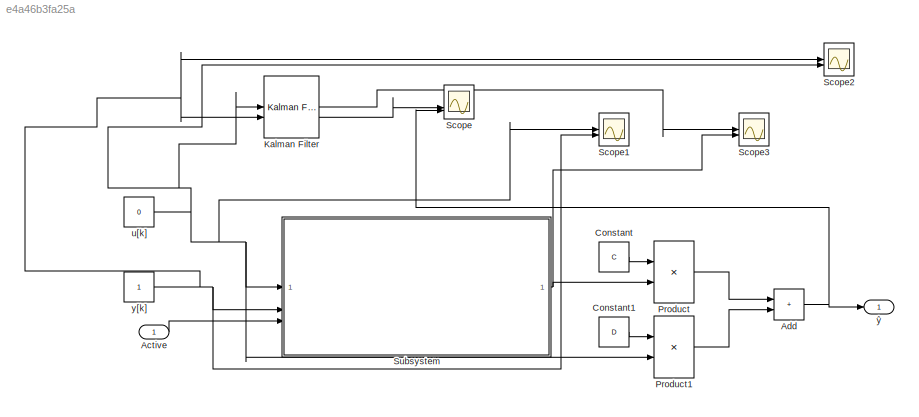
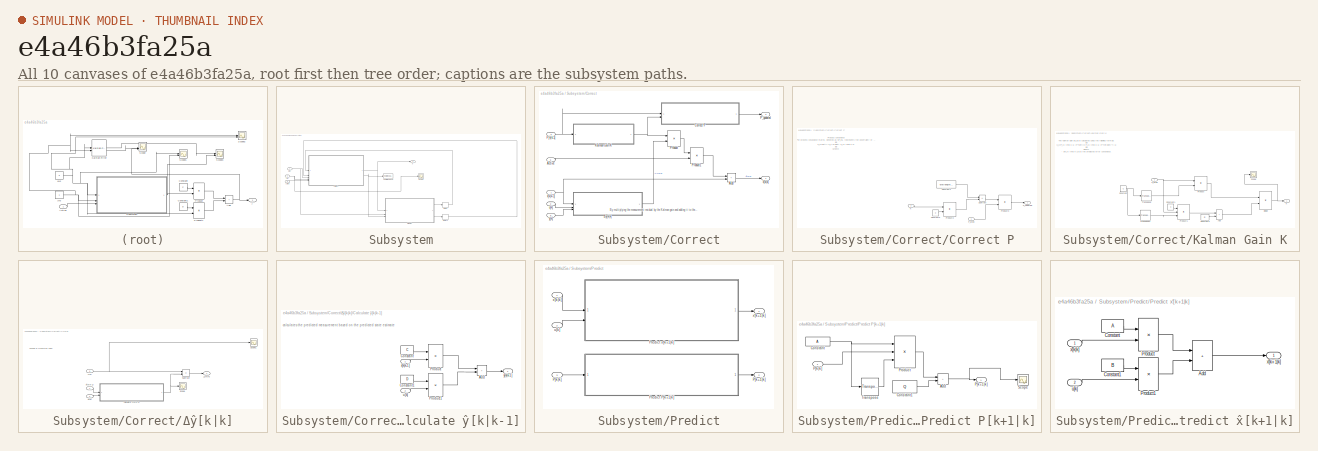
[diagram: thumbnail index - all 10 canvases of the model, root first then tree order]
MODEL slx_e4a46b3fa25a
KIND model
CONFIG AbsTol = auto
CONFIG EnableMultiTasking = off
CONFIG FixedStep = auto
CONFIG MaxStep = auto
CONFIG MinStep = auto
CONFIG RelTol = 1e-3
CONFIG SampleTimeConstraint = Unconstrained
CONFIG SolverName = VariableStepDiscrete
CONFIG StartTime = 0.0
CONFIG StopTime = 100.0
BLOCK [Inport] Active
BLOCK [Sum] Add
  IconShape = rectangular
BLOCK [Constant] Constant
  Value = C
  VectorParams1D = off
BLOCK [Constant] Constant1
  Value = D
  VectorParams1D = off
BLOCK [Reference] Kalman Filter  REF=ctrlSharedLib/Kalman Filter
  LibrarySourceBlock = cstblocks/State Estimation/Kalman Filter
  SourceBlock = ctrlSharedLib/Kalman Filter
  SourceType = ctrlKalmanFilter
BLOCK [Product] Product
  Multiplication = Matrix(*)
BLOCK [Product] Product1
  Multiplication = Matrix(*)
BLOCK [Scope] Scope
  Floating = off
  NumInputPorts = 3
  ScopeSpecificationString = Simulink.scopes.TimeScopeBlockCfg('CurrentConfiguration', extmgr.ConfigurationSet(extmgr.Configuration('Core','General UI',true),extmgr.Configuration('Core','Source UI',true),extmgr.Configuration('Sources','WiredSimulink',true,'DataLoggingVariableName','CalculatedKalman','DataLogging',true,'DataLoggingSaveFormat','StructureWithTime'),extmgr.Configuration('Visuals','Time Domain',true,'PlotType','St...<+1852ch>
BLOCK [Scope] Scope1
  Floating = off
  NumInputPorts = 2
  ScopeSpecificationString = Simulink.scopes.TimeScopeBlockCfg('CurrentConfiguration', extmgr.ConfigurationSet(extmgr.Configuration('Core','General UI',true),extmgr.Configuration('Core','Source UI',true),extmgr.Configuration('Sources','WiredSimulink',true,'DataLoggingVariableName','CalculatedKalman1','DataLogging',true,'DataLoggingSaveFormat','StructureWithTime'),extmgr.Configuration('Visuals','Time Domain',true,'PlotType','S...<+1841ch>
BLOCK [Scope] Scope2
  Floating = off
  NumInputPorts = 2
  ScopeSpecificationString = Simulink.scopes.TimeScopeBlockCfg('CurrentConfiguration', extmgr.ConfigurationSet(extmgr.Configuration('Core','General UI',true),extmgr.Configuration('Core','Source UI',true),extmgr.Configuration('Sources','WiredSimulink',true,'DataLoggingVariableName','CalculatedKalman2','DataLogging',true,'DataLoggingSaveFormat','StructureWithTime'),extmgr.Configuration('Visuals','Time Domain',true,'PlotType','S...<+1817ch>
BLOCK [Scope] Scope3
  Floating = off
  NumInputPorts = 2
  ScopeSpecificationString = Simulink.scopes.TimeScopeBlockCfg('CurrentConfiguration', extmgr.ConfigurationSet(extmgr.Configuration('Core','General UI',true),extmgr.Configuration('Core','Source UI',true),extmgr.Configuration('Sources','WiredSimulink',true,'DataLoggingVariableName','ScopeData1'),extmgr.Configuration('Visuals','Time Domain',true,'SerializedDisplays',{struct('MinYLimReal','-12.5','MaxYLimReal','12.5','YLabelReal...<+1737ch>
BLOCK [SubSystem] Subsystem
BLOCK [Inport] Subsystem/Active
  Port = 3
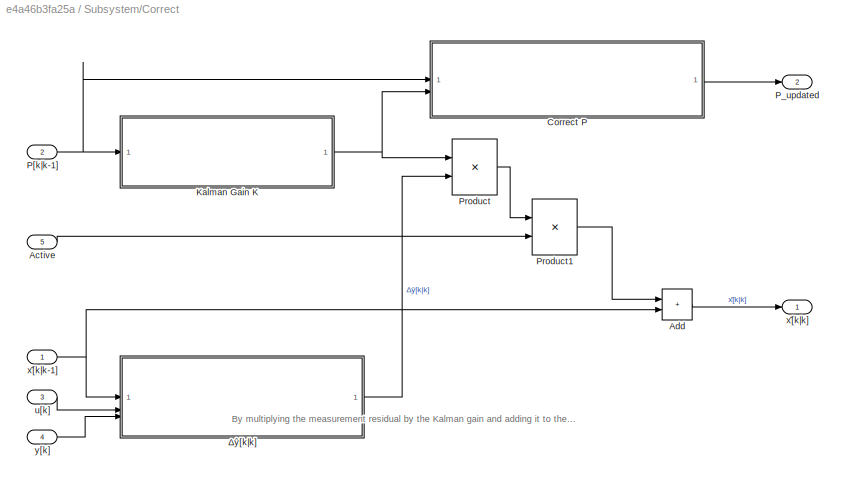
BLOCK [SubSystem] Subsystem/Correct
BLOCK [Inport] Subsystem/Correct/Active
  Port = 5
BLOCK [Sum] Subsystem/Correct/Add
  IconShape = rectangular
BLOCK [SubSystem] Subsystem/Correct/Correct P
BLOCK [Constant] Subsystem/Correct/Correct P/Constant4
  Value = eye(length(C))
  VectorParams1D = off
BLOCK [Constant] Subsystem/Correct/Correct P/Constant5
  Value = C
  VectorParams1D = off
BLOCK [Inport] Subsystem/Correct/Correct P/K
  Port = 2
BLOCK [Inport] Subsystem/Correct/Correct P/P_pred
BLOCK [Outport] Subsystem/Correct/Correct P/P_updated
  VectorParamsAs1DForOutWhenUnconnected = off
BLOCK [Product] Subsystem/Correct/Correct P/Product2
  Multiplication = Matrix(*)
BLOCK [Product] Subsystem/Correct/Correct P/Product3
  Multiplication = Matrix(*)
BLOCK [Sum] Subsystem/Correct/Correct P/Subtract
  IconShape = rectangular
  Inputs = +-
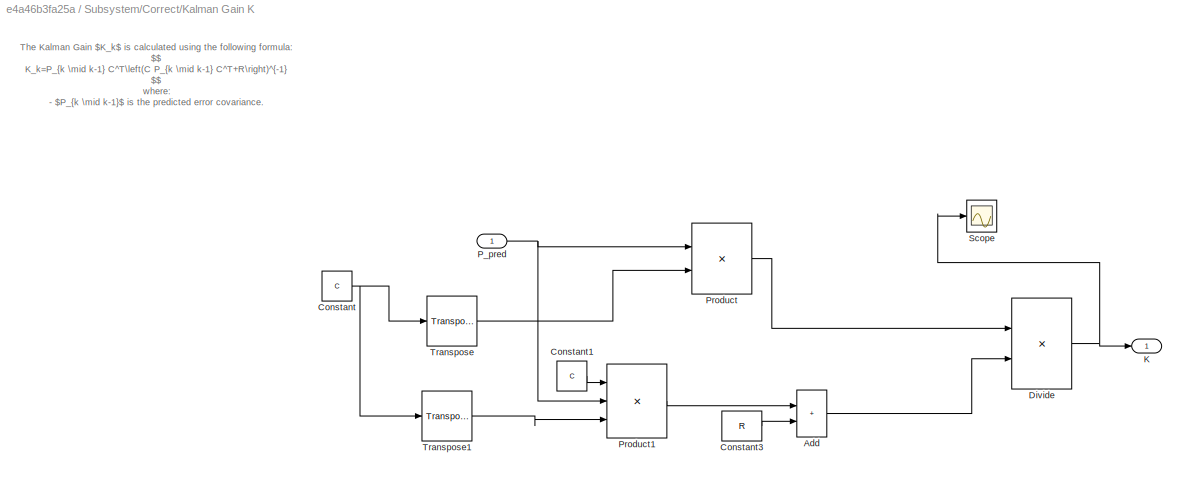
BLOCK [SubSystem] Subsystem/Correct/Kalman Gain K
BLOCK [Sum] Subsystem/Correct/Kalman Gain K/Add
  IconShape = rectangular
BLOCK [Constant] Subsystem/Correct/Kalman Gain K/Constant
  Value = C
  VectorParams1D = off
BLOCK [Constant] Subsystem/Correct/Kalman Gain K/Constant1
  Value = C
  VectorParams1D = off
BLOCK [Constant] Subsystem/Correct/Kalman Gain K/Constant3
  Value = R
  VectorParams1D = off
BLOCK [Product] Subsystem/Correct/Kalman Gain K/Divide
  Inputs = */
  Multiplication = Matrix(*)
BLOCK [Outport] Subsystem/Correct/Kalman Gain K/K
  VectorParamsAs1DForOutWhenUnconnected = off
BLOCK [Inport] Subsystem/Correct/Kalman Gain K/P_pred
BLOCK [Product] Subsystem/Correct/Kalman Gain K/Product
  Multiplication = Matrix(*)
BLOCK [Product] Subsystem/Correct/Kalman Gain K/Product1
  Inputs = 3
  Multiplication = Matrix(*)
BLOCK [Scope] Subsystem/Correct/Kalman Gain K/Scope
  Floating = off
  NumInputPorts = 1
  ScopeSpecificationString = Simulink.scopes.TimeScopeBlockCfg('CurrentConfiguration', extmgr.ConfigurationSet(extmgr.Configuration('Core','General UI',true),extmgr.Configuration('Core','Source UI',true),extmgr.Configuration('Sources','WiredSimulink',true,'DataLoggingVariableName','ScopeData3'),extmgr.Configuration('Visuals','Time Domain',true,'SerializedDisplays',{struct('MinYLimReal','-0.40555','MaxYLimReal','0.04506','YLab...<+1544ch>
BLOCK [Reference] Subsystem/Correct/Kalman Gain K/Transpose  REF=matrix_library/Transpose
  LibrarySourceBlock = simulink/Matrix\nOperations/Transpose
  SourceBlock = matrix_library/Transpose
  SourceType = Transpose
BLOCK [Reference] Subsystem/Correct/Kalman Gain K/Transpose1  REF=matrix_library/Transpose
  LibrarySourceBlock = simulink/Matrix\nOperations/Transpose
  SourceBlock = matrix_library/Transpose
  SourceType = Transpose
BLOCK [Inport] Subsystem/Correct/P[k|k-1]
  Port = 2
BLOCK [Outport] Subsystem/Correct/P_updated
  Port = 2
  VectorParamsAs1DForOutWhenUnconnected = off
BLOCK [Product] Subsystem/Correct/Product
  Multiplication = Matrix(*)
BLOCK [Product] Subsystem/Correct/Product1
  Multiplication = Matrix(*)
BLOCK [Inport] Subsystem/Correct/u[k]
  Port = 3
BLOCK [Inport] Subsystem/Correct/x̂[k|k-1]
BLOCK [Outport] Subsystem/Correct/x̂[k|k]
  VectorParamsAs1DForOutWhenUnconnected = off
BLOCK [Inport] Subsystem/Correct/y[k]
  Port = 4
BLOCK [SubSystem] Subsystem/Correct/Δŷ[k|k]
BLOCK [SubSystem] Subsystem/Correct/Δŷ[k|k]/Calculate ŷ[k|k-1]
BLOCK [Sum] Subsystem/Correct/Δŷ[k|k]/Calculate ŷ[k|k-1]/Add
  IconShape = rectangular
BLOCK [Constant] Subsystem/Correct/Δŷ[k|k]/Calculate ŷ[k|k-1]/Constant
  Value = C
  VectorParams1D = off
BLOCK [Constant] Subsystem/Correct/Δŷ[k|k]/Calculate ŷ[k|k-1]/Constant1
  Value = D
  VectorParams1D = off
BLOCK [Product] Subsystem/Correct/Δŷ[k|k]/Calculate ŷ[k|k-1]/Product
  Multiplication = Matrix(*)
BLOCK [Product] Subsystem/Correct/Δŷ[k|k]/Calculate ŷ[k|k-1]/Product1
  Multiplication = Matrix(*)
BLOCK [Inport] Subsystem/Correct/Δŷ[k|k]/Calculate ŷ[k|k-1]/u[k]
  Port = 2
BLOCK [Inport] Subsystem/Correct/Δŷ[k|k]/Calculate ŷ[k|k-1]/x̂[k|k-1]
BLOCK [Outport] Subsystem/Correct/Δŷ[k|k]/Calculate ŷ[k|k-1]/ŷ[k|k-1]
  VectorParamsAs1DForOutWhenUnconnected = off
BLOCK [Scope] Subsystem/Correct/Δŷ[k|k]/Scope
  Floating = off
  NumInputPorts = 1
  ScopeSpecificationString = Simulink.scopes.TimeScopeBlockCfg('CurrentConfiguration', extmgr.ConfigurationSet(extmgr.Configuration('Core','General UI',true),extmgr.Configuration('Core','Source UI',true),extmgr.Configuration('Sources','WiredSimulink',true,'DataLoggingVariableName','ScopeData2'),extmgr.Configuration('Visuals','Time Domain',true,'SerializedDisplays',{struct('MinYLimReal','-244.28559','MaxYLimReal','99.36507','Y...<+1418ch>
BLOCK [Scope] Subsystem/Correct/Δŷ[k|k]/Scope1
  Floating = off
  NumInputPorts = 1
  ScopeSpecificationString = Simulink.scopes.TimeScopeBlockCfg('CurrentConfiguration', extmgr.ConfigurationSet(extmgr.Configuration('Core','General UI',true),extmgr.Configuration('Core','Source UI',true),extmgr.Configuration('Sources','WiredSimulink',true,'DataLoggingVariableName','ScopeData3'),extmgr.Configuration('Visuals','Time Domain',true,'SerializedDisplays',{struct('MinYLimReal','0.9','MaxYLimReal','1.1','YLabelReal','...<+1453ch>
BLOCK [Sum] Subsystem/Correct/Δŷ[k|k]/Subtract
  IconShape = rectangular
  Inputs = +-
BLOCK [Inport] Subsystem/Correct/Δŷ[k|k]/u[k]
  Port = 2
BLOCK [Inport] Subsystem/Correct/Δŷ[k|k]/x̂[k|k-1]
BLOCK [Inport] Subsystem/Correct/Δŷ[k|k]/y[k]
  Port = 3
BLOCK [Outport] Subsystem/Correct/Δŷ[k|k]/Δŷ[k|k]
  VectorParamsAs1DForOutWhenUnconnected = off
BLOCK [Delay] Subsystem/Delay
  DelayLength = 1
  InitialCondition = X0
  InputPortMap = u0
BLOCK [Delay] Subsystem/Delay1
  DelayLength = 1
  InitialCondition = P0
  InputPortMap = u0
BLOCK [SubSystem] Subsystem/Predict
BLOCK [Outport] Subsystem/Predict/P[k+1|k]
  Port = 2
  VectorParamsAs1DForOutWhenUnconnected = off
BLOCK [Inport] Subsystem/Predict/P[k|k]
  Port = 3
BLOCK [SubSystem] Subsystem/Predict/Predict P[k+1|k]
BLOCK [Sum] Subsystem/Predict/Predict P[k+1|k]/Add
  IconShape = rectangular
BLOCK [Constant] Subsystem/Predict/Predict P[k+1|k]/Constant
  Value = A
  VectorParams1D = off
BLOCK [Constant] Subsystem/Predict/Predict P[k+1|k]/Constant1
  Value = Q
  VectorParams1D = off
BLOCK [Outport] Subsystem/Predict/Predict P[k+1|k]/P[k+1|k]
  VectorParamsAs1DForOutWhenUnconnected = off
BLOCK [Inport] Subsystem/Predict/Predict P[k+1|k]/P[k|k]
BLOCK [Product] Subsystem/Predict/Predict P[k+1|k]/Product
  Inputs = 3
  Multiplication = Matrix(*)
BLOCK [Scope] Subsystem/Predict/Predict P[k+1|k]/Scope
  Floating = off
  NumInputPorts = 1
  ScopeSpecificationString = Simulink.scopes.TimeScopeBlockCfg('CurrentConfiguration', extmgr.ConfigurationSet(extmgr.Configuration('Core','General UI',true),extmgr.Configuration('Core','Source UI',true),extmgr.Configuration('Sources','WiredSimulink',true,'DataLoggingVariableName','ScopeData2'),extmgr.Configuration('Visuals','Time Domain',true,'SerializedDisplays',{struct('MinYLimReal','-0.56248','MaxYLimReal','1.75139','YLab...<+1638ch>
BLOCK [Reference] Subsystem/Predict/Predict P[k+1|k]/Transpose  REF=matrix_library/Transpose
  LibrarySourceBlock = simulink/Matrix\nOperations/Transpose
  SourceBlock = matrix_library/Transpose
  SourceType = Transpose
BLOCK [SubSystem] Subsystem/Predict/Predict x̂[k+1|k]
BLOCK [Sum] Subsystem/Predict/Predict x̂[k+1|k]/Add
  IconShape = rectangular
BLOCK [Constant] Subsystem/Predict/Predict x̂[k+1|k]/Constant
  Value = A
  VectorParams1D = off
BLOCK [Constant] Subsystem/Predict/Predict x̂[k+1|k]/Constant1
  Value = B
  VectorParams1D = off
BLOCK [Product] Subsystem/Predict/Predict x̂[k+1|k]/Product
  Multiplication = Matrix(*)
BLOCK [Product] Subsystem/Predict/Predict x̂[k+1|k]/Product1
  Multiplication = Matrix(*)
BLOCK [Inport] Subsystem/Predict/Predict x̂[k+1|k]/u[k]
  Port = 2
BLOCK [Outport] Subsystem/Predict/Predict x̂[k+1|k]/x̂[k+1|k]
  VectorParamsAs1DForOutWhenUnconnected = off
BLOCK [Inport] Subsystem/Predict/Predict x̂[k+1|k]/x̂[k|k]
BLOCK [Inport] Subsystem/Predict/u[k]
  Port = 2
BLOCK [Outport] Subsystem/Predict/x̂[k+1|k]
  VectorParamsAs1DForOutWhenUnconnected = off
BLOCK [Inport] Subsystem/Predict/x̂[k|k]
BLOCK [Scope] Subsystem/Scope
  Floating = off
  NumInputPorts = 1
  ScopeSpecificationString = Simulink.scopes.TimeScopeBlockCfg('CurrentConfiguration', extmgr.ConfigurationSet(extmgr.Configuration('Core','General UI',true),extmgr.Configuration('Core','Source UI',true),extmgr.Configuration('Sources','WiredSimulink',true,'DataLoggingVariableName','ScopeData2'),extmgr.Configuration('Visuals','Time Domain',true,'SerializedDisplays',{struct('MinYLimReal','0.9','MaxYLimReal','1.1','YLabelReal','...<+1453ch>
BLOCK [ToWorkspace] Subsystem/To Workspace
  FixptAsFi = on
  MaxDataPoints = 1
  SampleTime = -1
  VariableName = Variance
BLOCK [Inport] Subsystem/u[k]
BLOCK [Outport] Subsystem/x̂
  VectorParamsAs1DForOutWhenUnconnected = off
BLOCK [Inport] Subsystem/y[k]
  Port = 2
BLOCK [Constant] u[k]
  Value = 0
  VectorParams1D = off
BLOCK [Constant] y[k]
BLOCK [Outport] ŷ
  VectorParamsAs1DForOutWhenUnconnected = off
ANNOTATION Subsystem/Correct: By multiplying the measurement residual by the Kalman gain and adding it to the predicted state estimate from the previous time step, the expression effectively updates the state estimate to incorporate the most recent measurement information, while taking into account the uncertainty represented by the Kalman gain.
ANNOTATION Subsystem/Correct/Correct P: P rocess covariance The process covariance matrix, denoted as $P_k$, represents the uncertainty or error in the predicted state estimate $\left(\hat{X}_k\right)$ of a system in a Kalman filter. It evolves over time as the system dynamics change. The equation to update the process covariance matrix in the Kalman filter is derived from the prediction step and is given by: $$ P_k=\left(I-K_k C\right)...<+177ch>
ANNOTATION Subsystem/Correct/Kalman Gain K: The Kalman Gain $K_k$ is calculated using the following formula: $$ K_k=P_{k \mid k-1} C^T\left(C P_{k \mid k-1} C^T+R\right)^{-1} $$ where: - $P_{k \mid k-1}$ is the predicted error covariance. - $C$ is the measurement matrix. - $R$ is the measurement noise covariance. P_pred = P[k|k-1]
ANNOTATION Subsystem/Correct/Δŷ[k|k]: Change in Measured Value
ANNOTATION Subsystem/Correct/Δŷ[k|k]/Calculate ŷ[k|k-1]: calculates the predicted measurement based on the predicted state estimate
LINE Active:1 -> Subsystem:3
NET Add:1 -> Scope:3, ŷ:1
LINE Constant1:1 -> Product1:1
LINE Constant:1 -> Product:1
LINE Kalman Filter:1 -> Scope3:1
LINE Kalman Filter:2 -> Scope:2
LINE Product1:1 -> Add:2
LINE Product:1 -> Add:1
LINE Subsystem/Active:1 -> Subsystem/Correct:5
LINE Subsystem/Correct/Active:1 -> Subsystem/Correct/Product1:2
LINE Subsystem/Correct/Add:1 -> Subsystem/Correct/x̂[k|k]:1
LINE Subsystem/Correct/Correct P/Constant4:1 -> Subsystem/Correct/Correct P/Subtract:1
LINE Subsystem/Correct/Correct P/Constant5:1 -> Subsystem/Correct/Correct P/Product2:2
LINE Subsystem/Correct/Correct P/K:1 -> Subsystem/Correct/Correct P/Product2:1
LINE Subsystem/Correct/Correct P/P_pred:1 -> Subsystem/Correct/Correct P/Product3:2
LINE Subsystem/Correct/Correct P/Product2:1 -> Subsystem/Correct/Correct P/Subtract:2
LINE Subsystem/Correct/Correct P/Product3:1 -> Subsystem/Correct/Correct P/P_updated:1
LINE Subsystem/Correct/Correct P/Subtract:1 -> Subsystem/Correct/Correct P/Product3:1
LINE Subsystem/Correct/Correct P:1 -> Subsystem/Correct/P_updated:1
LINE Subsystem/Correct/Kalman Gain K/Add:1 -> Subsystem/Correct/Kalman Gain K/Divide:2
LINE Subsystem/Correct/Kalman Gain K/Constant1:1 -> Subsystem/Correct/Kalman Gain K/Product1:1
LINE Subsystem/Correct/Kalman Gain K/Constant3:1 -> Subsystem/Correct/Kalman Gain K/Add:2
NET Subsystem/Correct/Kalman Gain K/Constant:1 -> Subsystem/Correct/Kalman Gain K/Transpose1:1, Subsystem/Correct/Kalman Gain K/Transpose:1
NET Subsystem/Correct/Kalman Gain K/Divide:1 -> Subsystem/Correct/Kalman Gain K/K:1, Subsystem/Correct/Kalman Gain K/Scope:1
NET Subsystem/Correct/Kalman Gain K/P_pred:1 -> Subsystem/Correct/Kalman Gain K/Product1:2, Subsystem/Correct/Kalman Gain K/Product:1
LINE Subsystem/Correct/Kalman Gain K/Product1:1 -> Subsystem/Correct/Kalman Gain K/Add:1
LINE Subsystem/Correct/Kalman Gain K/Product:1 -> Subsystem/Correct/Kalman Gain K/Divide:1
LINE Subsystem/Correct/Kalman Gain K/Transpose1:1 -> Subsystem/Correct/Kalman Gain K/Product1:3
LINE Subsystem/Correct/Kalman Gain K/Transpose:1 -> Subsystem/Correct/Kalman Gain K/Product:2
NET Subsystem/Correct/Kalman Gain K:1 -> Subsystem/Correct/Correct P:2, Subsystem/Correct/Product:1
NET Subsystem/Correct/P[k|k-1]:1 -> Subsystem/Correct/Correct P:1, Subsystem/Correct/Kalman Gain K:1
LINE Subsystem/Correct/Product1:1 -> Subsystem/Correct/Add:1
LINE Subsystem/Correct/Product:1 -> Subsystem/Correct/Product1:1
LINE Subsystem/Correct/u[k]:1 -> Subsystem/Correct/Δŷ[k|k]:2
NET Subsystem/Correct/x̂[k|k-1]:1 -> Subsystem/Correct/Add:2, Subsystem/Correct/Δŷ[k|k]:1
LINE Subsystem/Correct/y[k]:1 -> Subsystem/Correct/Δŷ[k|k]:3
LINE Subsystem/Correct/Δŷ[k|k]/Calculate ŷ[k|k-1]/Add:1 -> Subsystem/Correct/Δŷ[k|k]/Calculate ŷ[k|k-1]/ŷ[k|k-1]:1
LINE Subsystem/Correct/Δŷ[k|k]/Calculate ŷ[k|k-1]/Constant1:1 -> Subsystem/Correct/Δŷ[k|k]/Calculate ŷ[k|k-1]/Product1:1
LINE Subsystem/Correct/Δŷ[k|k]/Calculate ŷ[k|k-1]/Constant:1 -> Subsystem/Correct/Δŷ[k|k]/Calculate ŷ[k|k-1]/Product:1
LINE Subsystem/Correct/Δŷ[k|k]/Calculate ŷ[k|k-1]/Product1:1 -> Subsystem/Correct/Δŷ[k|k]/Calculate ŷ[k|k-1]/Add:2
LINE Subsystem/Correct/Δŷ[k|k]/Calculate ŷ[k|k-1]/Product:1 -> Subsystem/Correct/Δŷ[k|k]/Calculate ŷ[k|k-1]/Add:1
LINE Subsystem/Correct/Δŷ[k|k]/Calculate ŷ[k|k-1]/u[k]:1 -> Subsystem/Correct/Δŷ[k|k]/Calculate ŷ[k|k-1]/Product1:2
LINE Subsystem/Correct/Δŷ[k|k]/Calculate ŷ[k|k-1]/x̂[k|k-1]:1 -> Subsystem/Correct/Δŷ[k|k]/Calculate ŷ[k|k-1]/Product:2
NET Subsystem/Correct/Δŷ[k|k]/Calculate ŷ[k|k-1]:1 -> Subsystem/Correct/Δŷ[k|k]/Scope:1, Subsystem/Correct/Δŷ[k|k]/Subtract:2
LINE Subsystem/Correct/Δŷ[k|k]/Subtract:1 -> Subsystem/Correct/Δŷ[k|k]/Δŷ[k|k]:1
LINE Subsystem/Correct/Δŷ[k|k]/u[k]:1 -> Subsystem/Correct/Δŷ[k|k]/Calculate ŷ[k|k-1]:2
LINE Subsystem/Correct/Δŷ[k|k]/x̂[k|k-1]:1 -> Subsystem/Correct/Δŷ[k|k]/Calculate ŷ[k|k-1]:1
NET Subsystem/Correct/Δŷ[k|k]/y[k]:1 -> Subsystem/Correct/Δŷ[k|k]/Scope1:1, Subsystem/Correct/Δŷ[k|k]/Subtract:1
LINE Subsystem/Correct/Δŷ[k|k]:1 -> Subsystem/Correct/Product:2
NET Subsystem/Correct:1 -> Subsystem/Predict:1, Subsystem/x̂:1
NET Subsystem/Correct:2 -> Subsystem/Predict:3, Subsystem/To Workspace:1
LINE Subsystem/Delay1:1 -> Subsystem/Correct:2
LINE Subsystem/Delay:1 -> Subsystem/Correct:1
LINE Subsystem/Predict/P[k|k]:1 -> Subsystem/Predict/Predict P[k+1|k]:1
NET Subsystem/Predict/Predict P[k+1|k]/Add:1 -> Subsystem/Predict/Predict P[k+1|k]/P[k+1|k]:1, Subsystem/Predict/Predict P[k+1|k]/Scope:1
LINE Subsystem/Predict/Predict P[k+1|k]/Constant1:1 -> Subsystem/Predict/Predict P[k+1|k]/Add:2
NET Subsystem/Predict/Predict P[k+1|k]/Constant:1 -> Subsystem/Predict/Predict P[k+1|k]/Product:1, Subsystem/Predict/Predict P[k+1|k]/Transpose:1
LINE Subsystem/Predict/Predict P[k+1|k]/P[k|k]:1 -> Subsystem/Predict/Predict P[k+1|k]/Product:2
LINE Subsystem/Predict/Predict P[k+1|k]/Product:1 -> Subsystem/Predict/Predict P[k+1|k]/Add:1
LINE Subsystem/Predict/Predict P[k+1|k]/Transpose:1 -> Subsystem/Predict/Predict P[k+1|k]/Product:3
LINE Subsystem/Predict/Predict P[k+1|k]:1 -> Subsystem/Predict/P[k+1|k]:1
LINE Subsystem/Predict/Predict x̂[k+1|k]/Add:1 -> Subsystem/Predict/Predict x̂[k+1|k]/x̂[k+1|k]:1
LINE Subsystem/Predict/Predict x̂[k+1|k]/Constant1:1 -> Subsystem/Predict/Predict x̂[k+1|k]/Product1:1
LINE Subsystem/Predict/Predict x̂[k+1|k]/Constant:1 -> Subsystem/Predict/Predict x̂[k+1|k]/Product:1
LINE Subsystem/Predict/Predict x̂[k+1|k]/Product1:1 -> Subsystem/Predict/Predict x̂[k+1|k]/Add:2
LINE Subsystem/Predict/Predict x̂[k+1|k]/Product:1 -> Subsystem/Predict/Predict x̂[k+1|k]/Add:1
LINE Subsystem/Predict/Predict x̂[k+1|k]/u[k]:1 -> Subsystem/Predict/Predict x̂[k+1|k]/Product1:2
LINE Subsystem/Predict/Predict x̂[k+1|k]/x̂[k|k]:1 -> Subsystem/Predict/Predict x̂[k+1|k]/Product:2
LINE Subsystem/Predict/Predict x̂[k+1|k]:1 -> Subsystem/Predict/x̂[k+1|k]:1
LINE Subsystem/Predict/u[k]:1 -> Subsystem/Predict/Predict x̂[k+1|k]:2
LINE Subsystem/Predict/x̂[k|k]:1 -> Subsystem/Predict/Predict x̂[k+1|k]:1
LINE Subsystem/Predict:1 -> Subsystem/Delay:1
LINE Subsystem/Predict:2 -> Subsystem/Delay1:1
NET Subsystem/u[k]:1 -> Subsystem/Correct:3, Subsystem/Predict:2
NET Subsystem/y[k]:1 -> Subsystem/Correct:4, Subsystem/Scope:1
NET Subsystem:1 -> Product:2, Scope3:2
NET u[k]:1 -> Kalman Filter:1, Product1:2, Scope1:1, Scope2:2, Subsystem:1
NET y[k]:1 -> Kalman Filter:2, Scope1:2, Scope2:1, Subsystem:2
note: NET lines group one-source signal fan-out (src -> all destinations, sorted); 1:1 wires keep LINE
